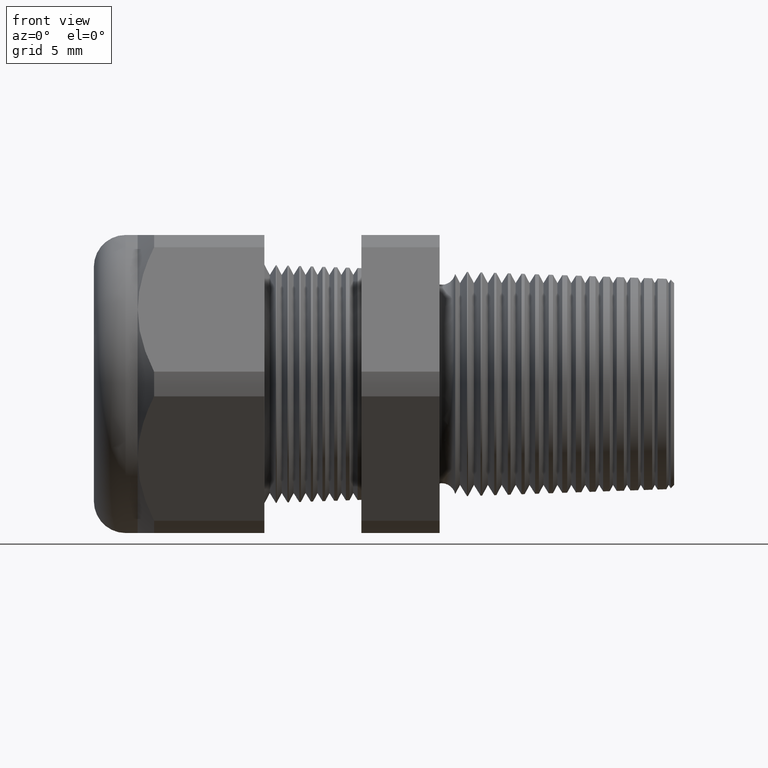
[diagram: clean part render]
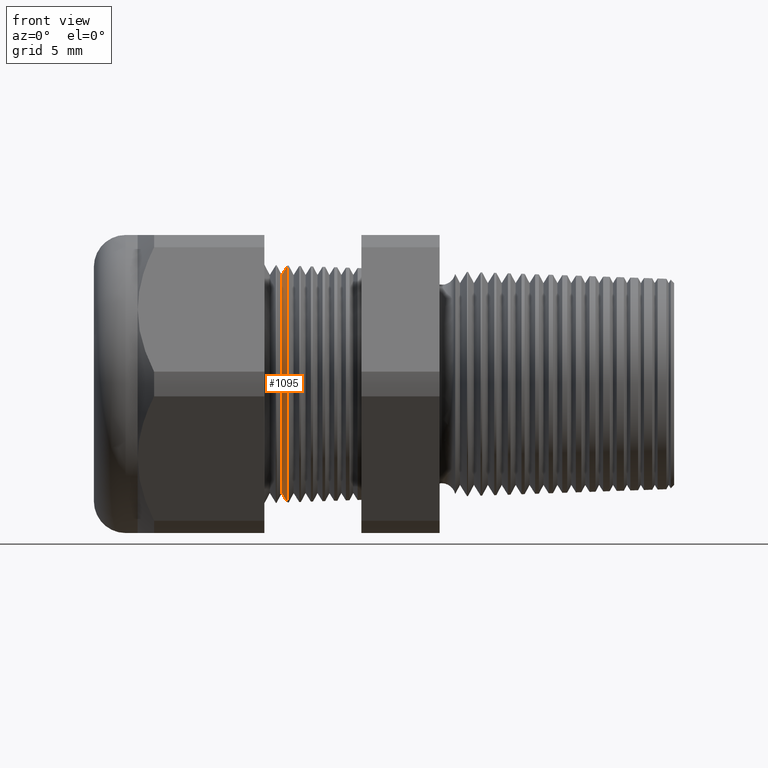
[diagram: same view with one face highlighted and labeled with its STEP entity id]
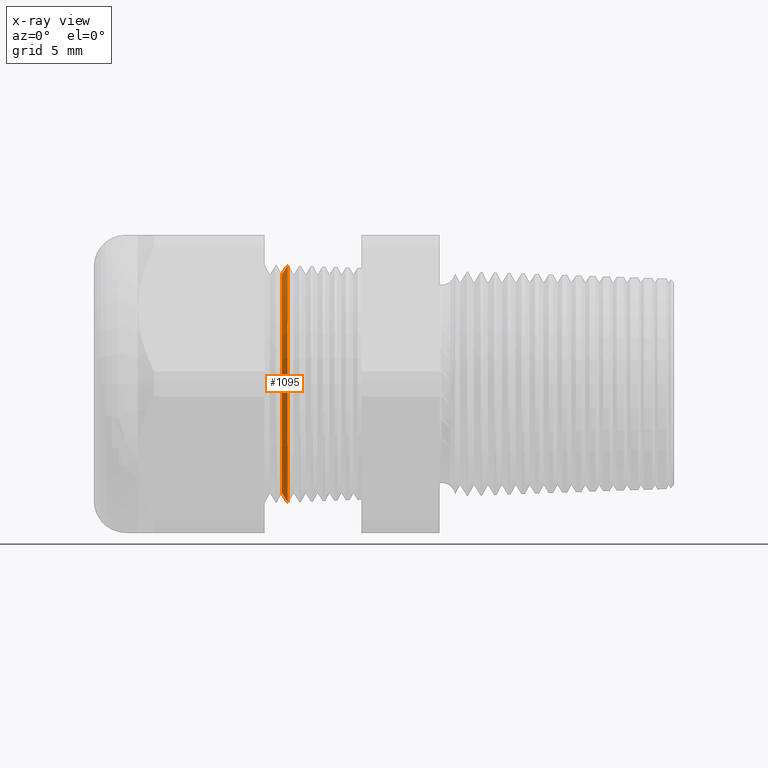
[diagram: x-ray of the same camera — body ghosted, the highlighted face saturated]
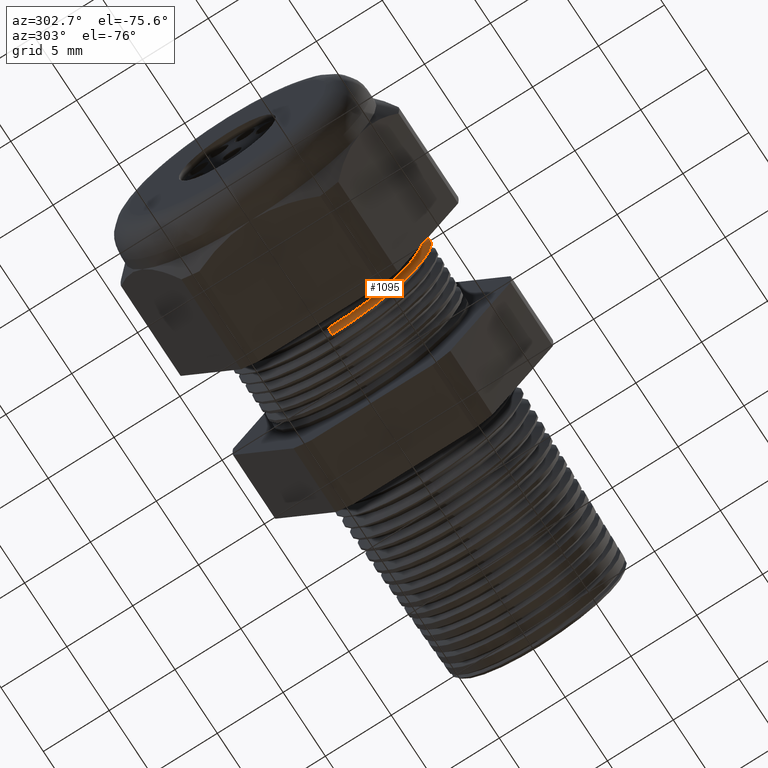
[diagram: same view with one face highlighted and labeled with its STEP entity id]
A machine part, front view. The second image highlights one B-rep face of the part: STEP entity #1095.
The next image is the same camera in x-ray: the body ghosted, the highlighted face saturated — about 0% of this face is hidden behind the body in this view.
A second angle (auxiliary view) of the same face is appended — the face is thin or edge-on in the first view.
In plain terms, the highlighted conical surface has half-angle 58 deg.
Its self-contained STEP definition (entity closure, byte-faithful):
#179 = VERTEX_POINT ( 'NONE', #2388 ) ;
#181 = EDGE_CURVE ( 'NONE', #179, #182, #2387, .T. ) ;
#182 = VERTEX_POINT ( 'NONE', #2444 ) ;
#185 = VERTEX_POINT ( 'NONE', #2438 ) ;
#187 = EDGE_CURVE ( 'NONE', #207, #185, #2437, .T. ) ;
#207 = VERTEX_POINT ( 'NONE', #2461 ) ;
#656 = EDGE_CURVE ( 'NONE', #185, #182, #3304, .T. ) ;
#1092 = EDGE_CURVE ( 'NONE', #179, #207, #4077, .T. ) ;
#1095 = ADVANCED_FACE ( 'NONE', ( #4073 ), #4072, .T. ) ;
#1096 = EDGE_LOOP ( 'NONE', ( #1097, #1150, #1151, #1152 ) ) ;
#1097 = ORIENTED_EDGE ( 'NONE', *, *, #181, .F. ) ;
#1150 = ORIENTED_EDGE ( 'NONE', *, *, #1092, .T. ) ;
#1151 = ORIENTED_EDGE ( 'NONE', *, *, #187, .T. ) ;
#1152 = ORIENTED_EDGE ( 'NONE', *, *, #656, .T. ) ;
#2387 = LINE ( 'NONE', #2447, #2446 ) ;
#2388 = CARTESIAN_POINT ( 'NONE',  ( -0.7073136650747177100, 0.0000000000000000000, 0.2745114984791284200 ) ) ;
#2434 = DIRECTION ( 'NONE',  ( 0.5299192642331902500, 0.0000000000000000000, -0.8480480961564351700 ) ) ;
#2435 = VECTOR ( 'NONE', #2434, 39.37007874015748100 ) ;
#2436 = CARTESIAN_POINT ( 'NONE',  ( -0.7073136650747177100, 0.0000000000000000000, -0.2745114984791284200 ) ) ;
#2437 = LINE ( 'NONE', #2436, #2435 ) ;
#2438 = CARTESIAN_POINT ( 'NONE',  ( -0.6926568616115392800, 3.649046844547325600E-017, -0.2979672871466232900 ) ) ;
#2444 = CARTESIAN_POINT ( 'NONE',  ( -0.6926568616115392800, 0.0000000000000000000, 0.2979672871466232900 ) ) ;
#2445 = DIRECTION ( 'NONE',  ( 0.5299192642331902500, 1.038559386480985100E-016, 0.8480480961564351700 ) ) ;
#2446 = VECTOR ( 'NONE', #2445, 39.37007874015748100 ) ;
#2447 = CARTESIAN_POINT ( 'NONE',  ( -0.7073136650747177100, 3.361796279416081000E-017, 0.2745114984791284200 ) ) ;
#2461 = CARTESIAN_POINT ( 'NONE',  ( -0.7073136650747177100, 3.511332134858419900E-017, -0.2745114984791284200 ) ) ;
#3302 = CARTESIAN_POINT ( 'NONE',  ( -0.6926568616115392800, 0.0000000000000000000, 0.0000000000000000000 ) ) ;
#3303 = AXIS2_PLACEMENT_3D ( 'NONE', #3302, #3363, #3362 ) ;
#3304 = CIRCLE ( 'NONE', #3303, 0.2979672871466232900 ) ;
#3362 = DIRECTION ( 'NONE',  ( 0.0000000000000000000, 0.0000000000000000000, -1.000000000000000000 ) ) ;
#3363 = DIRECTION ( 'NONE',  ( -1.000000000000000000, 0.0000000000000000000, 0.0000000000000000000 ) ) ;
#4072 = CONICAL_SURFACE ( 'NONE', #4137, 0.2745114984791284200, 1.012290966156728500 ) ;
#4073 = FACE_OUTER_BOUND ( 'NONE', #1096, .T. ) ;
#4074 = DIRECTION ( 'NONE',  ( 0.0000000000000000000, 0.0000000000000000000, -1.000000000000000000 ) ) ;
#4075 = DIRECTION ( 'NONE',  ( 1.000000000000000000, 0.0000000000000000000, 0.0000000000000000000 ) ) ;
#4076 = AXIS2_PLACEMENT_3D ( 'NONE', #4082, #4075, #4074 ) ;
#4077 = CIRCLE ( 'NONE', #4076, 0.2745114984791284200 ) ;
#4082 = CARTESIAN_POINT ( 'NONE',  ( -0.7073136650747177100, 0.0000000000000000000, 0.0000000000000000000 ) ) ;
#4134 = DIRECTION ( 'NONE',  ( 0.0000000000000000000, 0.0000000000000000000, -1.000000000000000000 ) ) ;
#4135 = DIRECTION ( 'NONE',  ( 1.000000000000000000, 0.0000000000000000000, 0.0000000000000000000 ) ) ;
#4136 = CARTESIAN_POINT ( 'NONE',  ( -0.7073136650747177100, 0.0000000000000000000, 0.0000000000000000000 ) ) ;
#4137 = AXIS2_PLACEMENT_3D ( 'NONE', #4136, #4135, #4134 ) ;